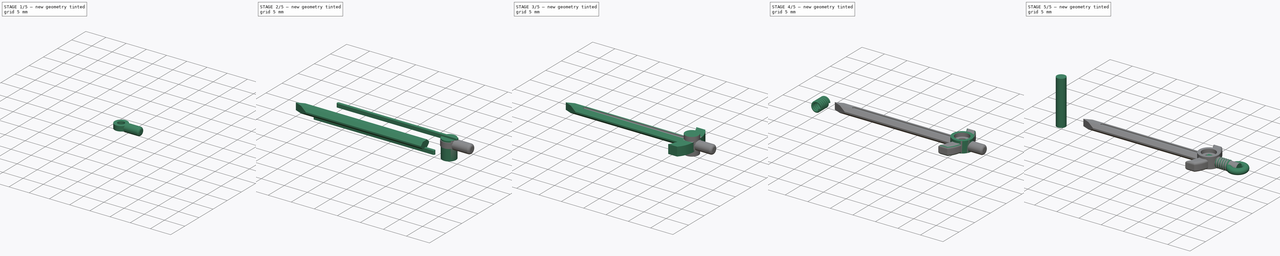
[diagram: build sequence overview — one tinted view per stage of 5, left to right]
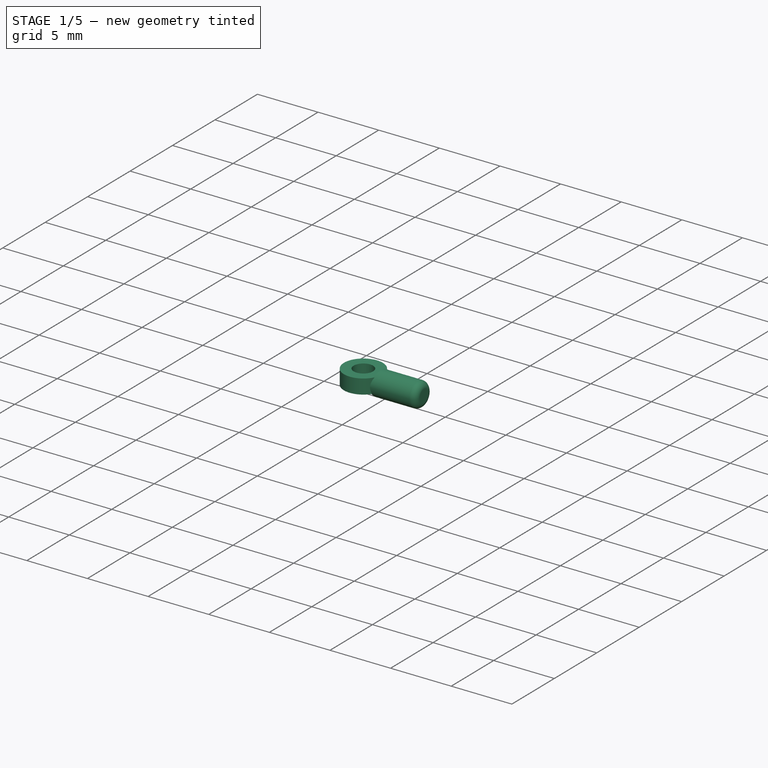
[diagram: stage 1 of 5 — iso view after this stage's code; geometry added in this stage tinted green]
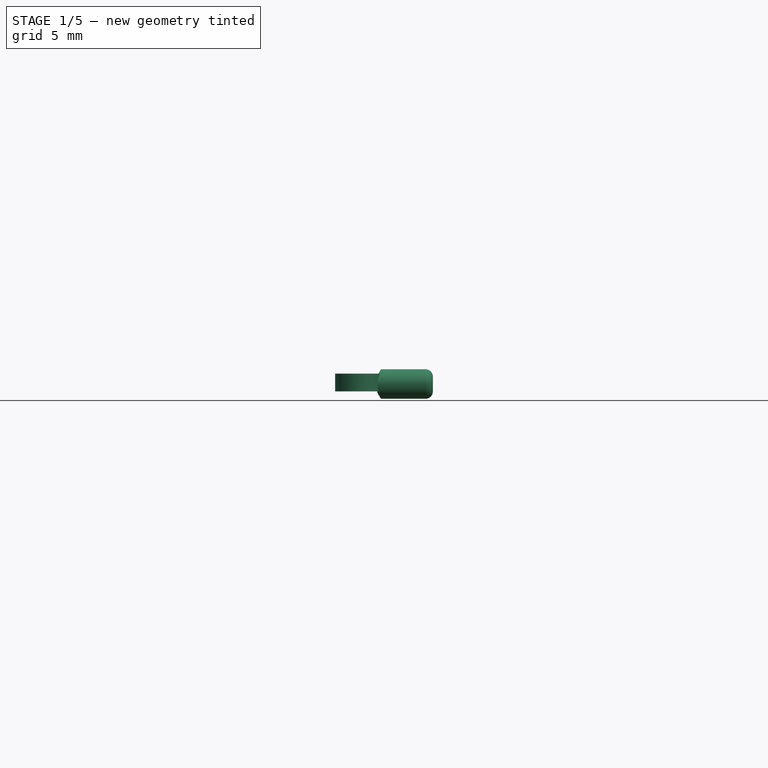
[diagram: stage 1 of 5 — front view after this stage's code; geometry added in this stage tinted green]
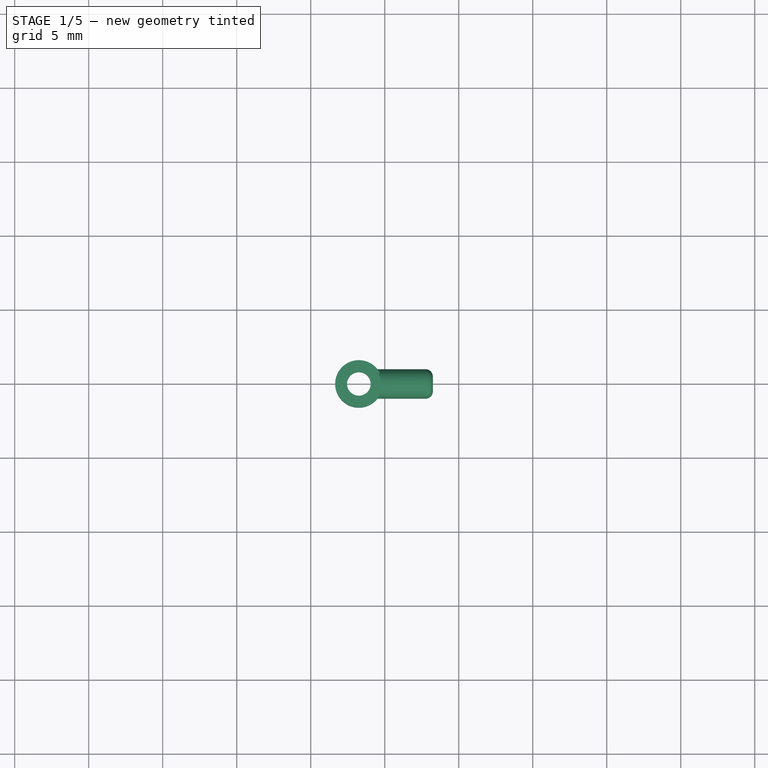
[diagram: stage 1 of 5 — top view after this stage's code; geometry added in this stage tinted green]
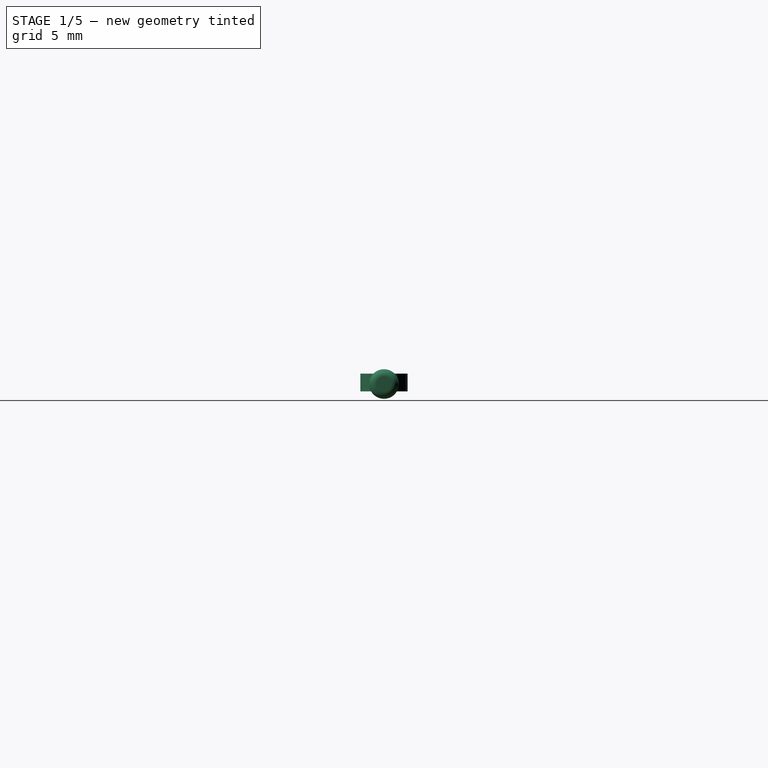
[diagram: stage 1 of 5 — right view after this stage's code; geometry added in this stage tinted green]
FCSTD DOCUMENT  (FreeCAD 0.19R)
Label: sword-of-sainktoedenrode
License: All rights reserved
LicenseURL: http://en.wikipedia.org/wiki/All_rights_reserved
objects: Sketcher::SketchObject×7, Part::Cylinder×6, Part::Cut×5, App::MeasureDistance×5, Part::Extrusion×4, Part::FeaturePython×4, Part::Fillet×3, Part::Feature×1, Part::Chamfer×1, Part::Torus×1, Part::Cone×1, Part::Part2DObjectPython×1, PartDesign::AdditiveHelix×1, PartDesign::Body×1, Part::Compound×1
note: 38 computed .brp shape members not serialized (recipe doc carries the construction recipe); baked Part::Feature solids carry a one-line shape summary decoded from their .brp

FEATURE [PartDesign::Body] Body
  Group = -> [Sketch003,AdditiveHelix]
  Origin = -> Origin
  Placement = pos=(39.3,0,2) rot=(0,0,1;1.5708rad)
  Tip = -> AdditiveHelix
FEATURE [Part::Cylinder] Cylinder002
  Angle = 360
  AttacherType = Attacher::AttachEngine3D
  Height = 4.5
  Placement = pos=(33.75,0,2) rot=(0.707107,0,0.707107;3.14159rad)
  Radius = 1
FEATURE [Part::Fillet] Fillet002
  Base = -> Cylinder002
  Edges = 1 edges r=0.5: [Edge1]
FEATURE [Part::Cylinder] Cylinder005
  Angle = 360
  AttacherType = Attacher::AttachEngine3D
  Height = 4
  Placement = pos=(33.25,0,-1) rot=(0,0,1;0rad)
  Radius = 1.5
FEATURE [Part::Cut] Cut004
  Base = -> Fillet002
  Tool = -> Cylinder005
FEATURE [Part::FeaturePython] Tube001  # WARN: FeaturePython — macro-defined, semantics opaque (R4)
  AttacherType = Attacher::AttachEngine3D
  Height = 1.2
  InnerRadius = 0.8
  OuterRadius = 1.6
  Placement = pos=(33.25,0,1.5) rot=(0,0,1;0rad)
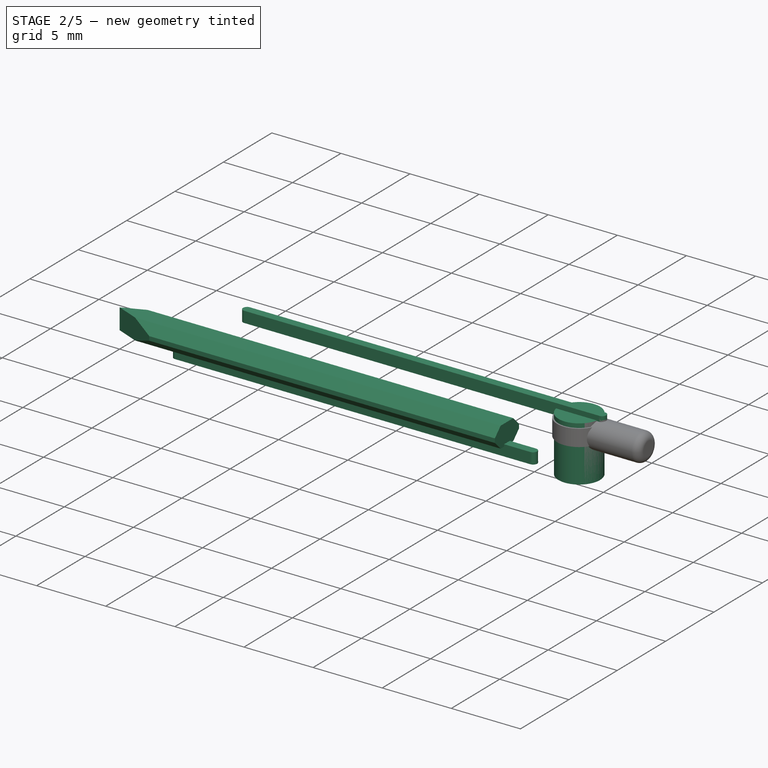
[diagram: stage 2 of 5 — iso view after this stage's code; geometry added in this stage tinted green]
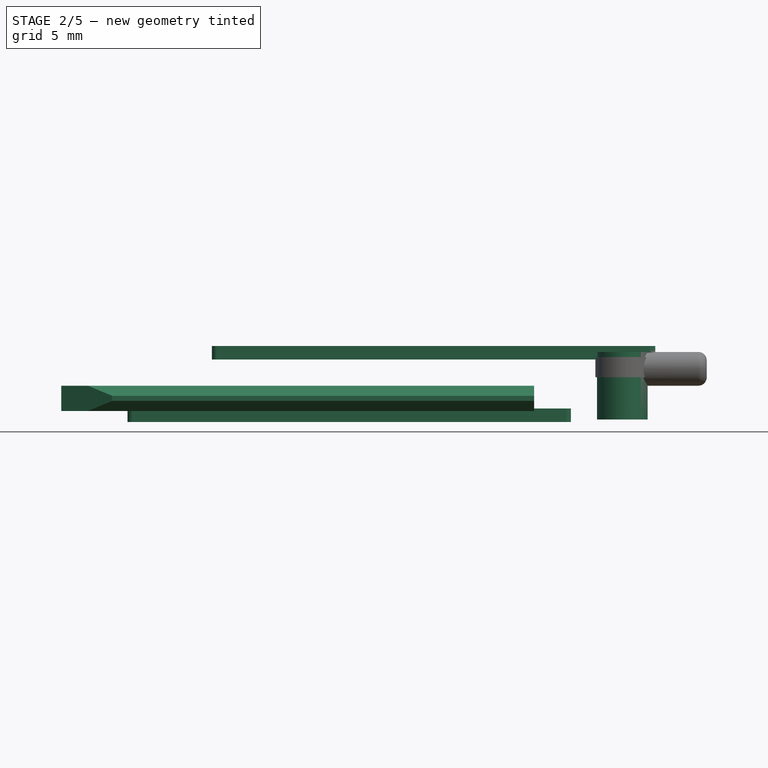
[diagram: stage 2 of 5 — front view after this stage's code; geometry added in this stage tinted green]
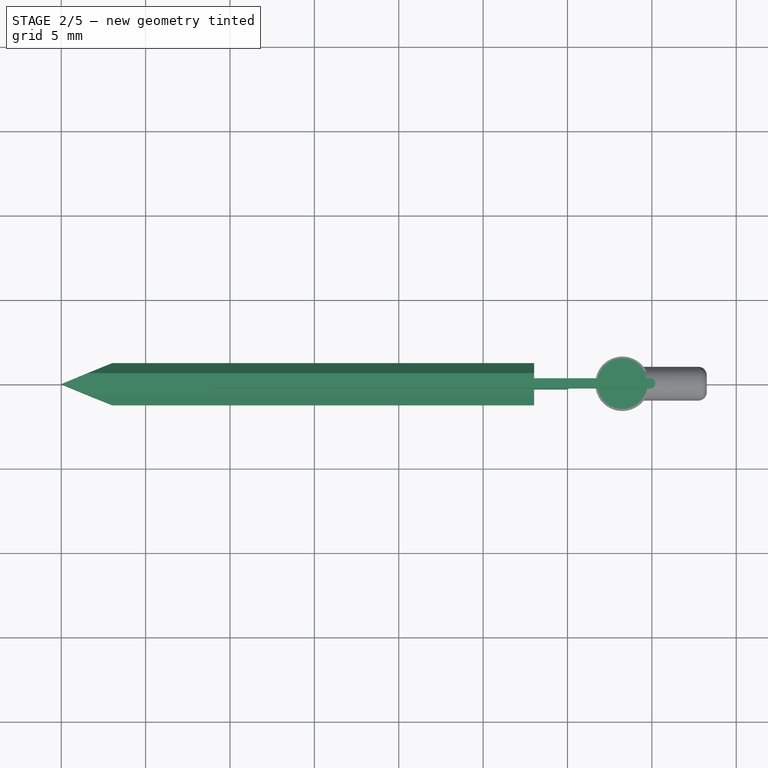
[diagram: stage 2 of 5 — top view after this stage's code; geometry added in this stage tinted green]
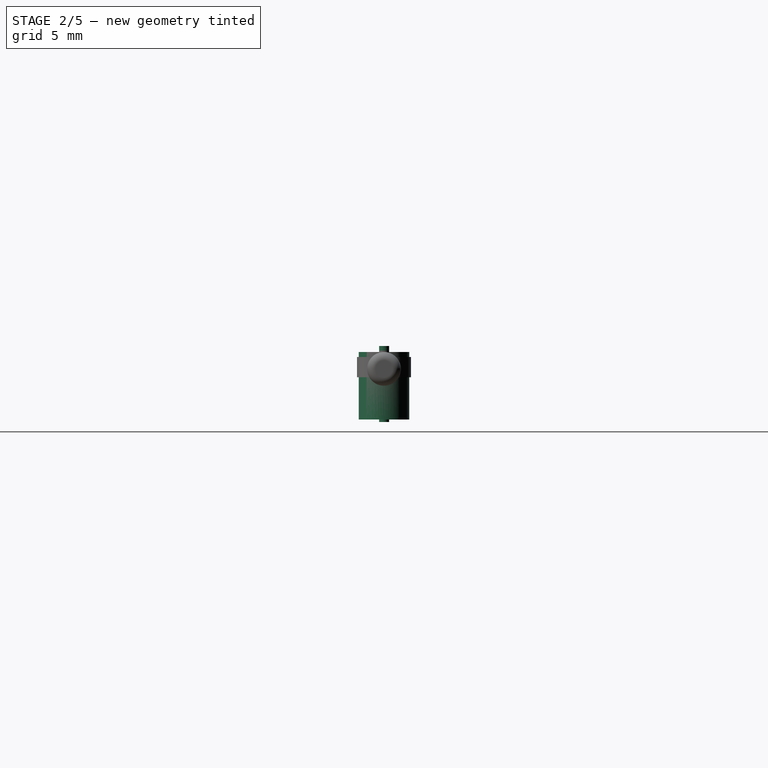
[diagram: stage 2 of 5 — right view after this stage's code; geometry added in this stage tinted green]
FEATURE [Sketcher::SketchObject] Sketch
  FullyConstrained = false
  Placement = pos=(0,0,1) rot=(0,0,1;0rad)
  sketch-geometry (11):
    g0: LineSegment StartX=0 StartY=0 StartZ=0 EndX=35 EndY=0 EndZ=0
    g1: LineSegment StartX=0 StartY=0 StartZ=0 EndX=3.01866 EndY=1.25 EndZ=0
    g2: LineSegment StartX=3.01866 StartY=1.25 StartZ=0 EndX=28.0187 EndY=1.25 EndZ=0
    g3: LineSegment StartX=28.0187 StartY=1.25 StartZ=0 EndX=28.0187 EndY=-1.25 EndZ=0
    g4: LineSegment StartX=28.0187 StartY=-1.25 StartZ=0 EndX=3.01866 EndY=-1.25 EndZ=0
    g5: LineSegment StartX=3.01866 StartY=-1.25 StartZ=0 EndX=0 EndY=0 EndZ=0
    g6: LineSegment StartX=3.01866 StartY=1.25 StartZ=0 EndX=3.01866 EndY=0 EndZ=0
    g7: LineSegment StartX=28.0187 StartY=5.25 StartZ=0 EndX=28.0187 EndY=1.25 EndZ=0
    g8: LineSegment StartX=28.0187 StartY=-1.25 StartZ=0 EndX=28.0187 EndY=-5.25 EndZ=0
    g9: LineSegment StartX=29.0587 StartY=3.25 StartZ=0 EndX=29.0587 EndY=-3.25 EndZ=0
    g10: LineSegment StartX=3.01866 StartY=0 StartZ=0 EndX=3.01866 EndY=-1.25 EndZ=0
  constraints (27):
    c: Coincident(g0,g-1)
    c: PointOnObject(g0,g-1)
    c: Distance(g0) = 35
    c: Coincident(g-1,g1)
    c: Coincident(g1,g2)
    c: Horizontal(g2)
    c: Coincident(g2,g3)
    c: Vertical(g3)
    c: Coincident(g3,g4)
    c: Horizontal(g4)
    c: Coincident(g4,g5)
    c: Coincident(g5,g1)
    c: Distance(g4) = 25
    c: Coincident(g6,g1)
    c: PointOnObject(g6,g0)
    c: Vertical(g6)
    c: Distance(g6) = 1.25
    c: Coincident(g7,g2)
    c: Vertical(g7)
    c: Coincident(g8,g3)
    c: Vertical(g8)
    c: Distance(g8) = 4
    c: Vertical(g9)
    c: Coincident(g10,g6)
    c: Coincident(g10,g4)
    c: Distance(g10) = 1.25
    c: Vertical(g10)
FEATURE [Sketcher::SketchObject] Sketch001
  FullyConstrained = false
  MapMode = 2
  Placement = pos=(0,0,1) rot=(0,0,1;0rad)
  Support = -> [Sketch]
  sketch-geometry (10):
    g0: LineSegment StartX=0 StartY=0 StartZ=0 EndX=31.0965 EndY=0 EndZ=0
    g1: LineSegment StartX=31.0965 StartY=0 StartZ=0 EndX=31.0965 EndY=4.5 EndZ=0
    g2: LineSegment StartX=31.0965 StartY=0 StartZ=0 EndX=31.0965 EndY=-4.5 EndZ=0
    g3: ArcOfCircle CenterX=23.8854 CenterY=0 CenterZ=0 NormalX=0 NormalY=0 NormalZ=1 AngleXU=0 Radius=8.5 StartAngle=5.72528 EndAngle=6.84109
    g4: LineSegment StartX=31.0965 StartY=4.5 StartZ=0 EndX=33.0965 EndY=4.5 EndZ=0
    g5: LineSegment StartX=31.0965 StartY=-4.5 StartZ=0 EndX=33.0965 EndY=-4.5 EndZ=0
    g6: LineSegment StartX=34.4324 StartY=0 StartZ=0 EndX=34.4324 EndY=1.12602 EndZ=0
    g7: LineSegment StartX=34.4324 StartY=0 StartZ=0 EndX=34.4324 EndY=-1.19855 EndZ=0
    g8: ArcOfCircle CenterX=28.9369 CenterY=0.901672 CenterZ=0 NormalX=0 NormalY=0 NormalZ=1 AngleXU=0 Radius=5.5 StartAngle=0.0408016 EndAngle=0.713179
    g9: ArcOfCircle CenterX=29.1433 CenterY=-0.979445 CenterZ=0 NormalX=0 NormalY=0 NormalZ=1 AngleXU=0 Radius=5.2936 StartAngle=5.55561 EndAngle=6.24178
  constraints (26):
    c: Coincident(g0,g-1)
    c: PointOnObject(g0,g-1)
    c: Coincident(g1,g0)
    c: Vertical(g1)
    c: Coincident(g2,g0)
    c: Vertical(g2)
    c: PointOnObject(g3,g0)
    c: Coincident(g3,g1)
    c: Coincident(g3,g2)
    c: Coincident(g4,g3)
    c: Horizontal(g4)
    c: Coincident(g5,g3)
    c: Horizontal(g5)
    c: Distance(g4) = 2
    c: PointOnObject(g6,g-1)
    c: Vertical(g6)
    c: Coincident(g7,g6)
    c: Vertical(g7)
    c: Coincident(g8,g4)
    c: Coincident(g8,g6)
    c: Radius(g8) = 5.5
    c: Distance(g5) = 2
    c: Coincident(g9,g7)
    c: Coincident(g9,g5)
    c: Distance(g1) = 4.5
    c: Radius(g3) = 8.5
FEATURE [Sketcher::SketchObject] Sketch002
  FullyConstrained = false
  MapMode = 2
  Placement = pos=(0,0,1) rot=(0,0,1;0rad)
  Support = -> [Sketch]
  sketch-geometry (2):
    g0: LineSegment StartX=2.84783 StartY=1.25781 StartZ=0 EndX=2.84783 EndY=-1.275 EndZ=0
    g1: LineSegment StartX=2.84783 StartY=0 StartZ=0 EndX=32.7637 EndY=0 EndZ=0
  constraints (4):
    c: Vertical(g0)
    c: PointOnObject(g1,g0)
    c: PointOnObject(g1,g-1)
    c: Horizontal(g1)
FEATURE [Part::Extrusion] Extrude001
  Base = -> Sketch
  Dir = (0,0,-1)
  DirMode = 0
  FaceMakerClass = Part::FaceMakerBullseye
  LengthFwd = 1.5
  LengthRev = 0
  Solid = true
  Symmetric = false
FEATURE [Part::Feature] Part__Feature  label="ROUND_BRILLIANT_3D0"
  Placement = pos=(33.25,0,3) rot=(1,0,0;1.5708rad)
  shape: bbox 3 x 3 x 1.77 mm, 74 faces (baked)
FEATURE [Sketcher::SketchObject] Mapped_Sketch
  FullyConstrained = false
  sketch-geometry (8):
    g0: LineSegment StartX=-15.1669 StartY=-0.75 StartZ=0 EndX=15.9677 EndY=-0.75 EndZ=0
    g1: LineSegment StartX=15.9677 StartY=-0.75 StartZ=0 EndX=15.9677 EndY=0.75 EndZ=0
    g2: LineSegment StartX=15.9677 StartY=0.75 StartZ=0 EndX=-15.1669 EndY=0.75 EndZ=0
    g3: LineSegment StartX=-15.1669 StartY=0.75 StartZ=0 EndX=-15.1669 EndY=-0.75 EndZ=0
    g4: ArcOfCircle CenterX=14.4743 CenterY=0 CenterZ=0 NormalX=0 NormalY=0 NormalZ=1 AngleXU=0 Radius=0.237233 StartAngle=4.71239 EndAngle=7.85398
    g5: ArcOfCircle CenterX=-14.3973 CenterY=1e-16 CenterZ=0 NormalX=0 NormalY=0 NormalZ=1 AngleXU=0 Radius=0.237233 StartAngle=1.5708 EndAngle=4.71239
    g6: LineSegment StartX=14.4743 StartY=0.237233 StartZ=0 EndX=-14.3973 EndY=0.237233 EndZ=0
    g7: LineSegment StartX=14.4743 StartY=-0.237233 StartZ=0 EndX=-14.3973 EndY=-0.237233 EndZ=0
  constraints (19):
    c: Coincident(g0,g1)
    c: Coincident(g1,g2)
    c: Coincident(g2,g3)
    c: Coincident(g3,g0)
    c: Horizontal(g0)
    c: Horizontal(g2)
    c: Vertical(g1)
    c: Vertical(g3)
    c: DistanceX(g2,g2) = 31.1346
    c: DistanceY(g1,g1) = 1.5
    c: DistanceX(g0,g-1) = 15.1669
    c: DistanceY(g0,g-1) = 0.75
    c: Tangent(g4,g7) = 1.5708
    c: Tangent(g4,g6) = -1.5708
    c: Tangent(g6,g5) = -1.5708
    c: Tangent(g7,g5) = 1.5708
    c: Horizontal(g6)
    c: Equal(g4,g5)
    c: PointOnObject(g4,g-1)
FEATURE [Part::FeaturePython] Sketch_On_Surface  # WARN: FeaturePython — macro-defined, semantics opaque (R4)
  ConstructionBounds = true
  FillExtrusion = true
  FillFaces = false
  ReverseU = false
  ReverseV = false
  Sketch = -> Mapped_Sketch
  SwapUV = false
  Thickness = 0
FEATURE [Part::Extrusion] Extrude002
  Base = -> Sketch_On_Surface
  Dir = (0,0,-1)
  DirMode = 0
  FaceMakerClass = Part::FaceMakerBullseye
  LengthFwd = 0.8
  LengthRev = 0
  Placement = pos=(0,0,0.65) rot=(0,0,1;0rad)
  Solid = true
  Symmetric = false
FEATURE [Part::Chamfer] Chamfer
  Base = -> Extrude001
  Edges = 4 edges r=0.6: [Edge6,Edge7,Edge12,Edge13]
FEATURE [Sketcher::SketchObject] Mapped_Sketch001
  FullyConstrained = false
  sketch-geometry (8):
    g0: LineSegment StartX=-15.1669 StartY=-0.75 StartZ=0 EndX=15.9677 EndY=-0.75 EndZ=0
    g1: LineSegment StartX=15.9677 StartY=-0.75 StartZ=0 EndX=15.9677 EndY=0.75 EndZ=0
    g2: LineSegment StartX=15.9677 StartY=0.75 StartZ=0 EndX=-15.1669 EndY=0.75 EndZ=0
    g3: LineSegment StartX=-15.1669 StartY=0.75 StartZ=0 EndX=-15.1669 EndY=-0.75 EndZ=0
    g4: ArcOfCircle CenterX=14.4743 CenterY=0 CenterZ=0 NormalX=0 NormalY=0 NormalZ=1 AngleXU=0 Radius=0.237233 StartAngle=4.71239 EndAngle=7.85398
    g5: ArcOfCircle CenterX=-14.3973 CenterY=1e-16 CenterZ=0 NormalX=0 NormalY=0 NormalZ=1 AngleXU=0 Radius=0.237233 StartAngle=1.5708 EndAngle=4.71239
    g6: LineSegment StartX=14.4743 StartY=0.237233 StartZ=0 EndX=-14.3973 EndY=0.237233 EndZ=0
    g7: LineSegment StartX=14.4743 StartY=-0.237233 StartZ=0 EndX=-14.3973 EndY=-0.237233 EndZ=0
  constraints (19):
    c: Coincident(g0,g1)
    c: Coincident(g1,g2)
    c: Coincident(g2,g3)
    c: Coincident(g3,g0)
    c: Horizontal(g0)
    c: Horizontal(g2)
    c: Vertical(g1)
    c: Vertical(g3)
    c: DistanceX(g2,g2) = 31.1346
    c: DistanceY(g1,g1) = 1.5
    c: DistanceX(g0,g-1) = 15.1669
    c: DistanceY(g0,g-1) = 0.75
    c: Tangent(g4,g7) = 1.5708
    c: Tangent(g4,g6) = -1.5708
    c: Tangent(g6,g5) = -1.5708
    c: Tangent(g7,g5) = 1.5708
    c: Horizontal(g6)
    c: Equal(g4,g5)
    c: PointOnObject(g4,g-1)
FEATURE [Part::FeaturePython] Sketch_On_Surface001  # WARN: FeaturePython — macro-defined, semantics opaque (R4)
  ConstructionBounds = true
  FillExtrusion = true
  FillFaces = false
  ReverseU = false
  ReverseV = false
  Sketch = -> Mapped_Sketch001
  SwapUV = false
  Thickness = 0
FEATURE [Part::Extrusion] Extrude003
  Base = -> Sketch_On_Surface001
  Dir = (0,0,-1)
  DirMode = 0
  FaceMakerClass = Part::FaceMakerBullseye
  LengthFwd = 0.8
  LengthRev = 0
  Placement = pos=(5,0,4.35) rot=(0,0,1;0rad)
  Solid = true
  Symmetric = false
FEATURE [App::MeasureDistance] Distance003  label="Distance: 1.50 mm"
  Distance = 1.50274
  P1 = (6.01574,-0.420609,1.25)
  P2 = (5.93189,-0.385887,2.75)
FEATURE [Part::Cylinder] Cylinder004
  Angle = 360
  AttacherType = Attacher::AttachEngine3D
  Height = 4
  Placement = pos=(33.25,0,-1) rot=(0,0,1;0rad)
  Radius = 1.5
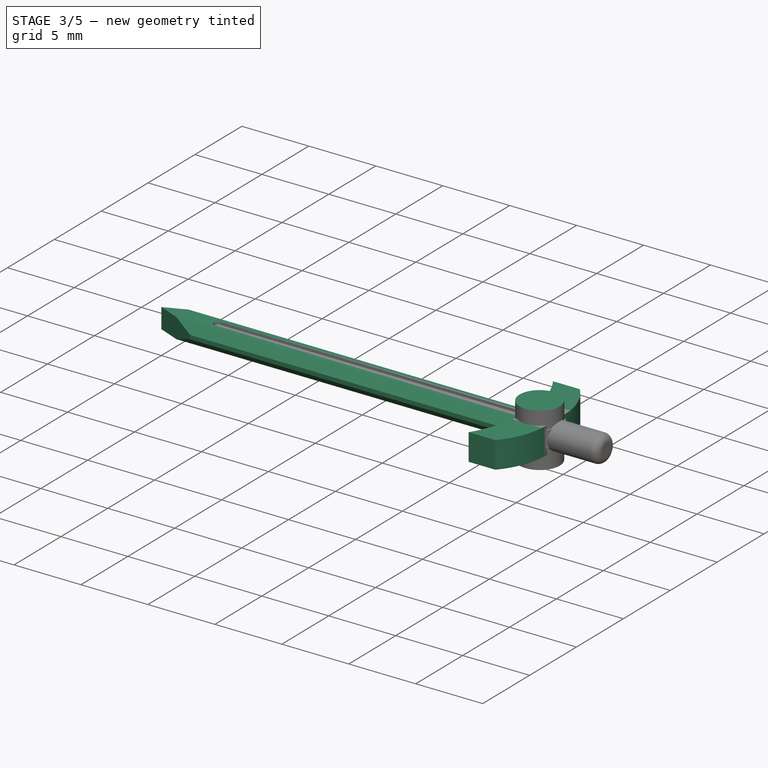
[diagram: stage 3 of 5 — iso view after this stage's code; geometry added in this stage tinted green]
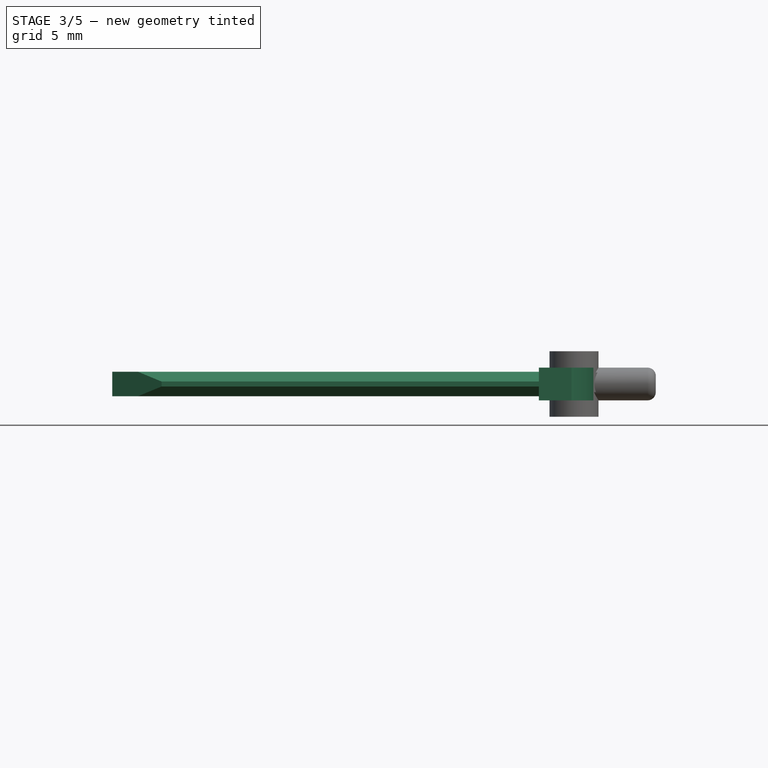
[diagram: stage 3 of 5 — front view after this stage's code; geometry added in this stage tinted green]
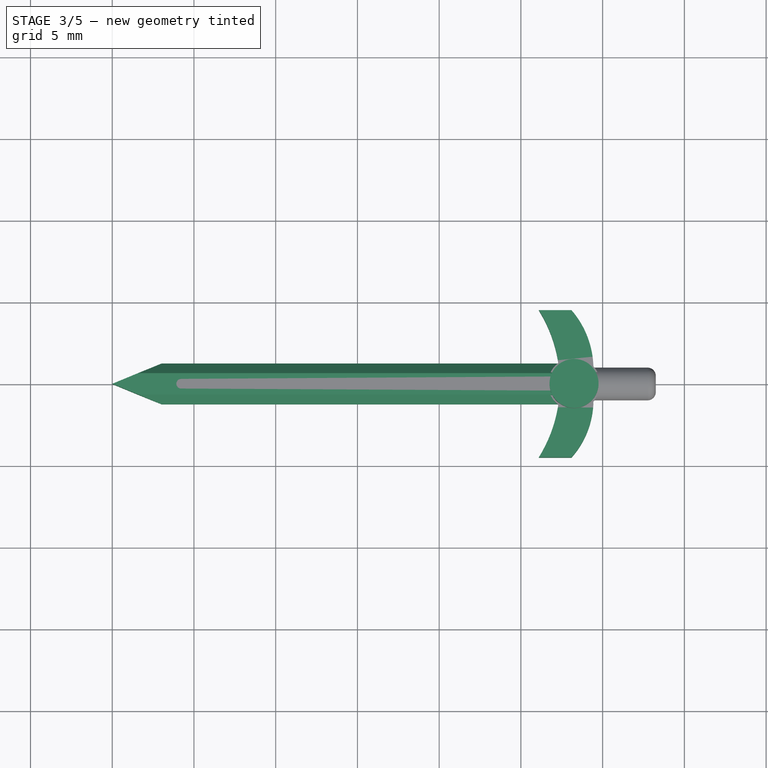
[diagram: stage 3 of 5 — top view after this stage's code; geometry added in this stage tinted green]
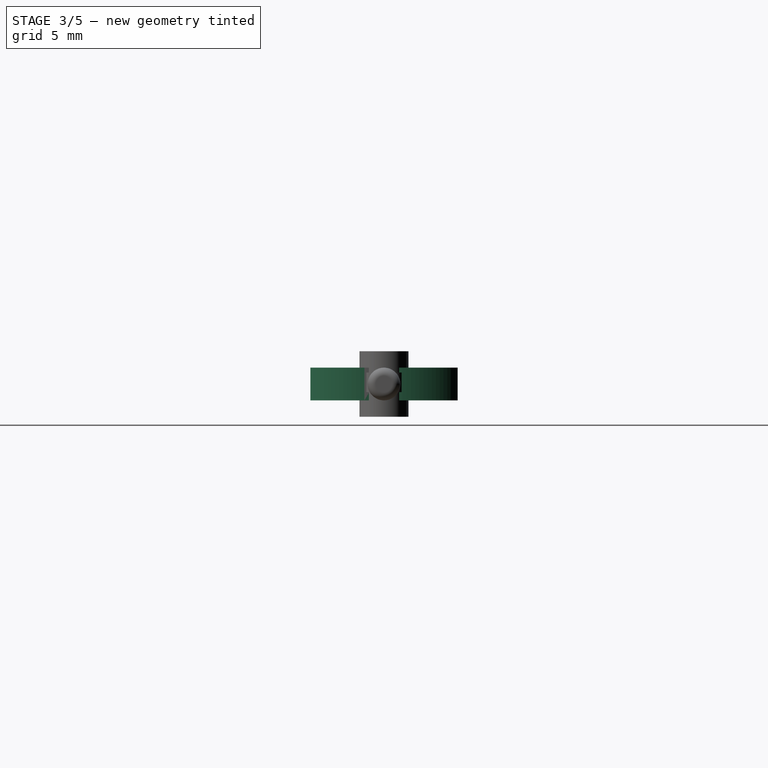
[diagram: stage 3 of 5 — right view after this stage's code; geometry added in this stage tinted green]
FEATURE [Part::Extrusion] Extrude
  Base = -> Sketch001
  Dir = (0,0,1)
  DirMode = 2
  FaceMakerClass = Part::FaceMakerBullseye
  LengthFwd = 2
  LengthRev = 0
  Solid = true
  Symmetric = false
FEATURE [Part::Part2DObjectPython] BSpline  label="Cone_BSpline"  # Draft 2D object (typed FeaturePython)
  Area = 0
  Closed = false
  MakeFace = true
  Parameterization = 1
  Points = (9) [(37.3496,0.201863,1.25),(37.4579,0.384243,1.33333),(37.424,0.50527,1.41667),(37.3435,0.594886,1.5),(37.2417,0.663981,1.58333),+4 more]
FEATURE [Part::Cut] Cut
  Base = -> Chamfer
  Placement = pos=(5,0,1.75) rot=(0,0,1;0rad)
  Tool = -> Extrude002
FEATURE [Part::Cut] Cut001
  Base = -> Cut
  Tool = -> Extrude003
FEATURE [App::MeasureDistance] Distance  label="Distance: 2.00 mm"
  Distance = 2
  P1 = (39.8705,0.992709,2)
  P2 = (39.6295,-0.992709,2)
FEATURE [Sketcher::SketchObject] Mapped_Sketch003
  FullyConstrained = false
  Support = -> [Fillet001]
  sketch-geometry (7):
    g0: LineSegment StartX=-0.86932 StartY=-3.99866 StartZ=0 EndX=1.1158 EndY=-3.99866 EndZ=0
    g1: LineSegment StartX=1.1158 StartY=-3.99866 StartZ=0 EndX=1.1158 EndY=4.00134 EndZ=0
    g2: LineSegment StartX=1.1158 StartY=4.00134 StartZ=0 EndX=-0.86932 EndY=4.00134 EndZ=0
    g3: LineSegment StartX=-0.86932 StartY=4.00134 StartZ=0 EndX=-0.86932 EndY=-3.99866 EndZ=0
    g4: Circle CenterX=0.530266 CenterY=0 CenterZ=0 NormalX=0 NormalY=0 NormalZ=1 AngleXU=0 Radius=0.530266
    g5: Circle CenterX=0.492993 CenterY=-3.01696 CenterZ=0 NormalX=0 NormalY=0 NormalZ=1 AngleXU=0 Radius=0.492993
    g6: Circle CenterX=0.465108 CenterY=2.91434 CenterZ=0 NormalX=0 NormalY=0 NormalZ=1 AngleXU=0 Radius=0.451984
  constraints (15):
    c: Coincident(g0,g1)
    c: Coincident(g1,g2)
    c: Coincident(g2,g3)
    c: Coincident(g3,g0)
    c: Horizontal(g0)
    c: Horizontal(g2)
    c: Vertical(g1)
    c: Vertical(g3)
    c: DistanceX(g2,g2) = 1.98512
    c: DistanceY(g1,g1) = 8
    c: DistanceX(g0,g-1) = 0.86932
    c: DistanceY(g0,g-1) = 3.99866
    c: PointOnObject(g4,g-1)
    c: PointOnObject(g-1,g4)
    c: Tangent(g5,g-2)
FEATURE [App::MeasureDistance] Distance001  label="Distance: 0.67 mm"
  Distance = 0.667033
  P1 = (1.46239,-0.333781,3)
  P2 = (2.08182,-0.0863193,3)
FEATURE [App::MeasureDistance] Distance002  label="Distance: 35.77 mm"
  Distance = 35.7651
  P1 = (40.7291,-0.0625471,4.35257)
  P2 = (5,0,2.75)
FEATURE [Part::Cylinder] Cylinder003
  Angle = 360
  AttacherType = Attacher::AttachEngine3D
  Height = 4
  Placement = pos=(33.25,0,0) rot=(0,0,1;0rad)
  Radius = 1.5
FEATURE [Part::Cut] Cut003
  Base = -> Cut001
  Tool = -> Cylinder004
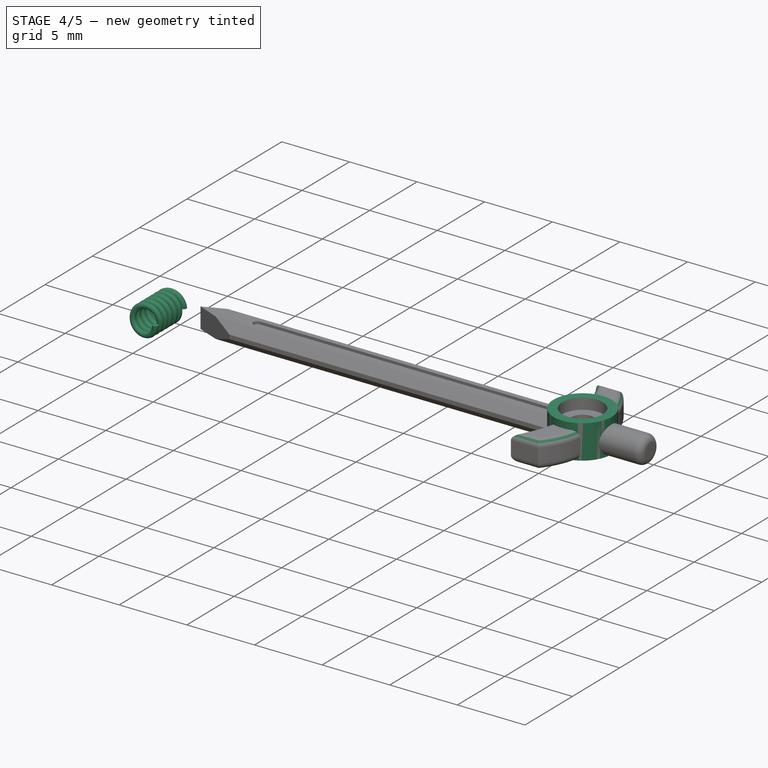
[diagram: stage 4 of 5 — iso view after this stage's code; geometry added in this stage tinted green]
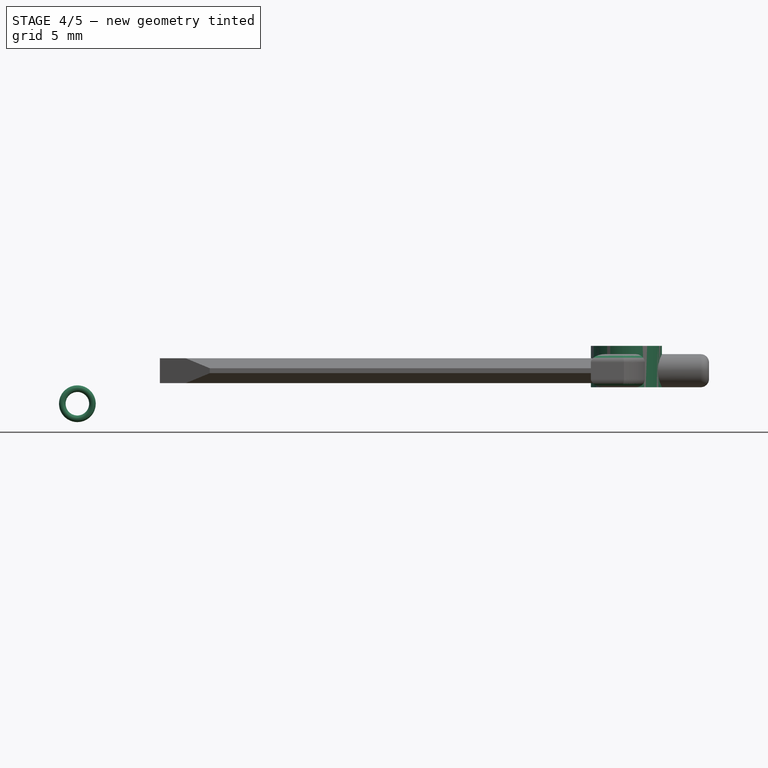
[diagram: stage 4 of 5 — front view after this stage's code; geometry added in this stage tinted green]
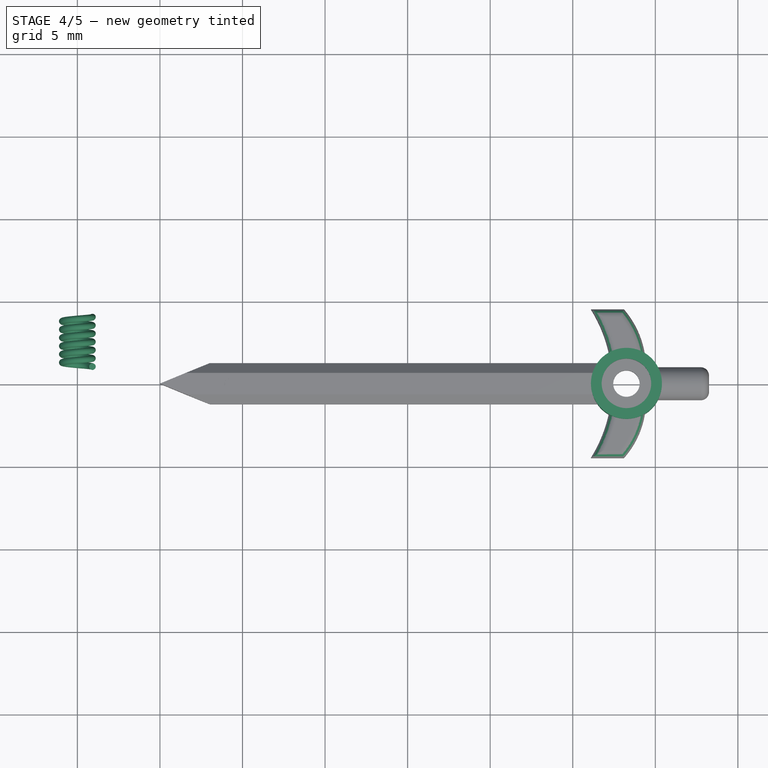
[diagram: stage 4 of 5 — top view after this stage's code; geometry added in this stage tinted green]
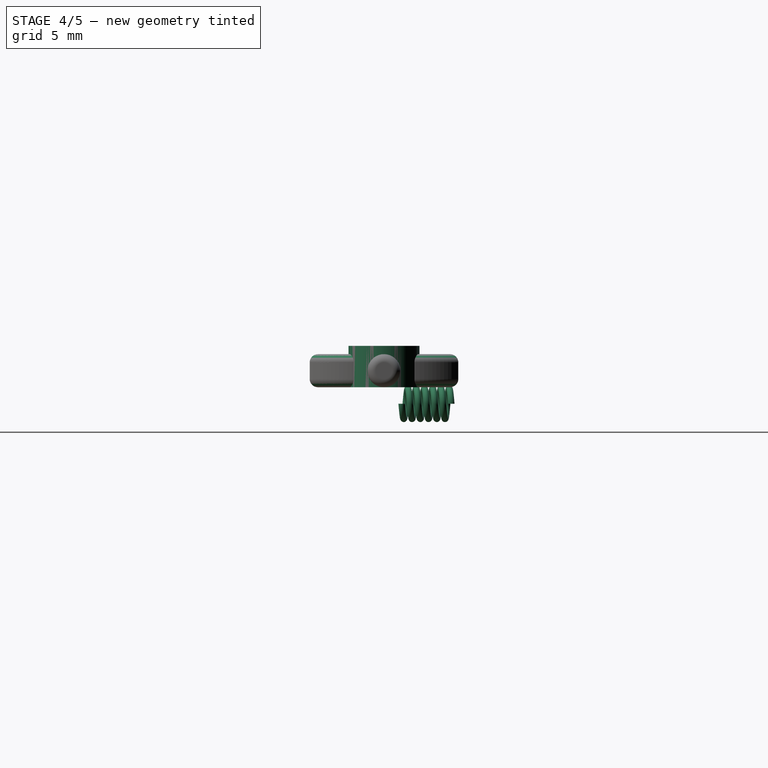
[diagram: stage 4 of 5 — right view after this stage's code; geometry added in this stage tinted green]
FEATURE [Part::Fillet] Fillet
  Base = -> Extrude
  Edges = 7 edges r=0.5: [Edge3,Edge6,Edge9,Edge12,Edge15,Edge18,Edge20]
FEATURE [Part::Fillet] Fillet001
  Base = -> Fillet
  Edges = 7 edges r=0.5: [Edge2,Edge5,Edge11,Edge12,Edge13,Edge14,Edge15]
FEATURE [PartDesign::AdditiveHelix] AdditiveHelix
  Angle = 0
  Axis = (0,1,0)
  Base = (0,0,0)
  HasBeenEdited = true
  Height = 3
  LeftHanded = false
  Mode = 0
  Outside = false
  Pitch = 0.5
  Profile = -> Sketch003
  ReferenceAxis = -> Sketch003 [V_Axis]
  Turns = 4
FEATURE [Part::FeaturePython] Tube  # WARN: FeaturePython — macro-defined, semantics opaque (R4)
  AttacherType = Attacher::AttachEngine3D
  Height = 2.5
  InnerRadius = 1.5
  OuterRadius = 2.15
  Placement = pos=(33.25,0,1) rot=(0,0,1;0rad)
FEATURE [Part::Cut] Cut002
  Base = -> Fillet001
  Tool = -> Cylinder003
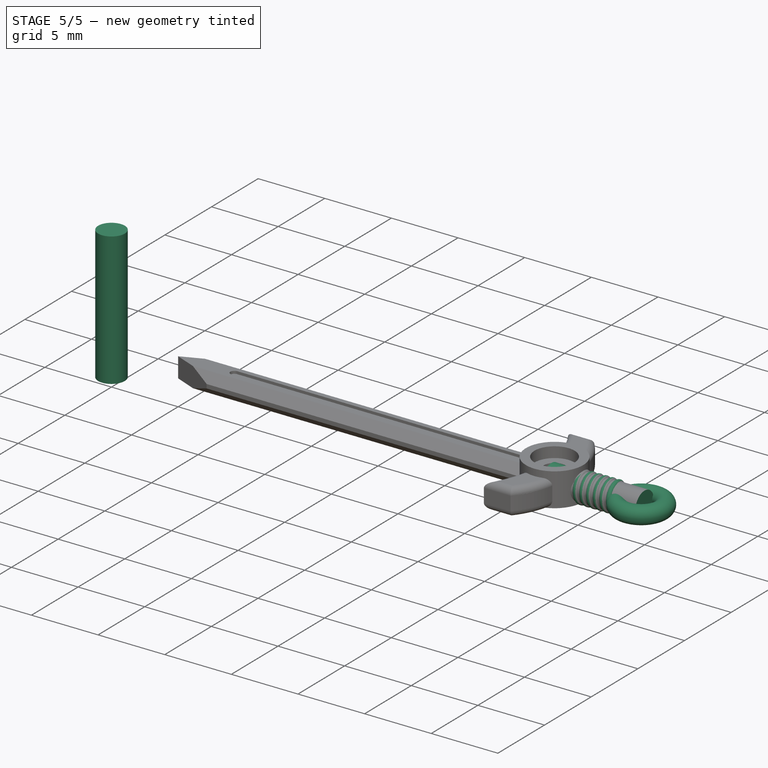
[diagram: stage 5 of 5 — iso view after this stage's code; geometry added in this stage tinted green]
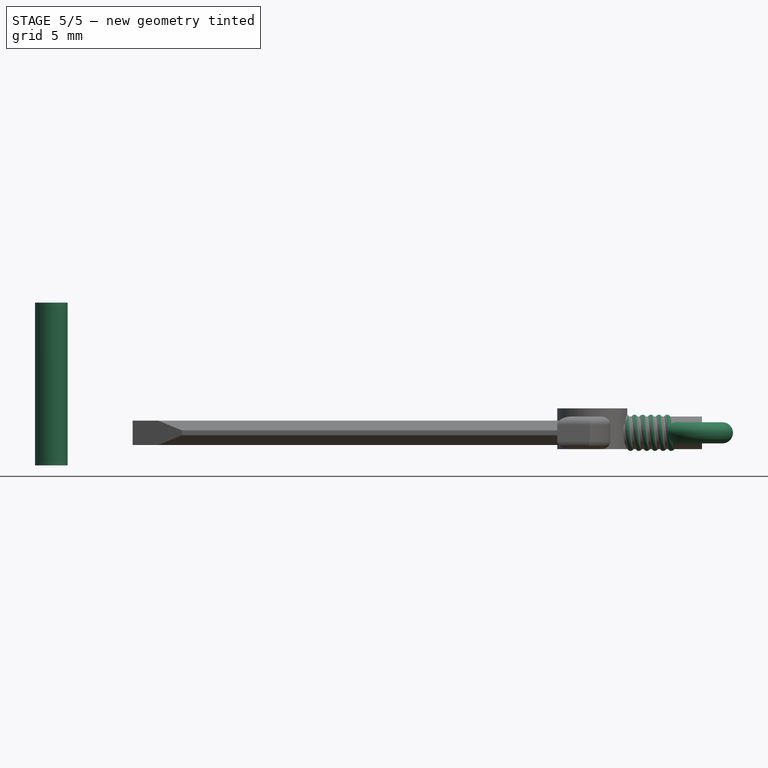
[diagram: stage 5 of 5 — front view after this stage's code; geometry added in this stage tinted green]
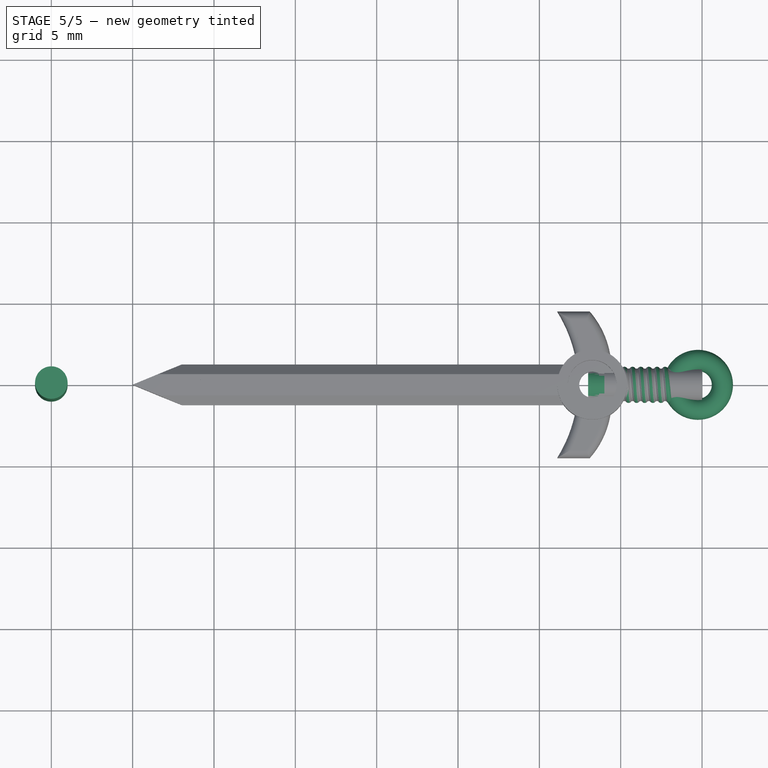
[diagram: stage 5 of 5 — top view after this stage's code; geometry added in this stage tinted green]
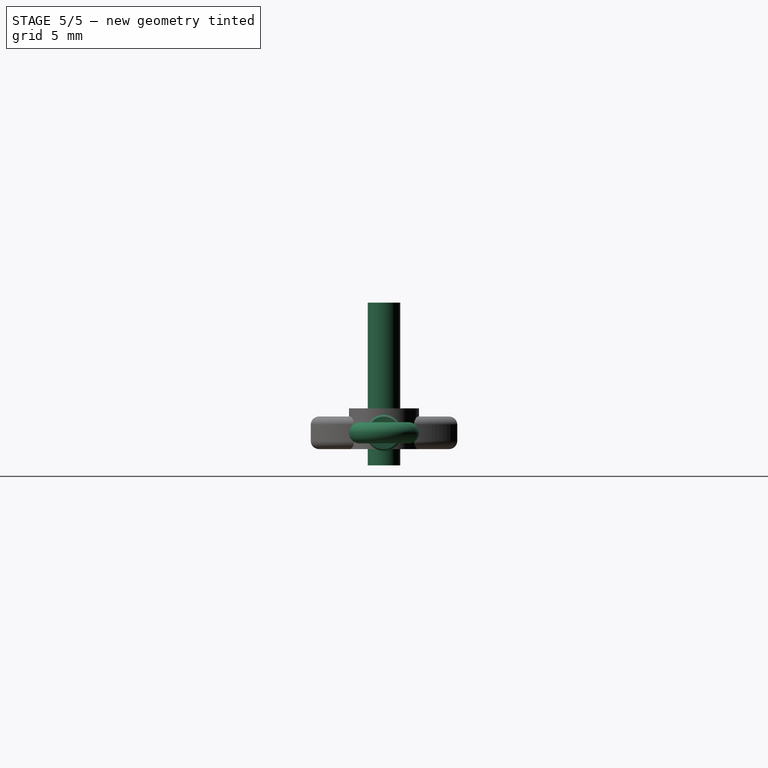
[diagram: stage 5 of 5 — right view after this stage's code; geometry added in this stage tinted green]
FEATURE [Part::Cylinder] Cylinder
  Angle = 360
  AttacherType = Attacher::AttachEngine3D
  Height = 6
  Placement = pos=(34,0,2) rot=(0,1,0;1.5708rad)
  Radius = 1
FEATURE [Part::Torus] Torus
  Angle1 = -180
  Angle2 = 180
  Angle3 = 360
  AttacherType = Attacher::AttachEngine3D
  Placement = pos=(39.75,0,2) rot=(0,0,1;0rad)
  Radius1 = 1.5
  Radius2 = 0.65
FEATURE [Part::Cone] Cone
  Angle = 360
  AttacherType = Attacher::AttachEngine3D
  Height = 6
  Placement = pos=(39,0,2) rot=(0,-1,0;1.5708rad)
  Radius1 = 0.8
  Radius2 = 1
FEATURE [Sketcher::SketchObject] Sketch003
  FullyConstrained = false
  MapMode = 5
  Support = -> [XY_Plane]
  sketch-geometry (1):
    g0: Circle CenterX=0.911652 CenterY=1.07161 CenterZ=0 NormalX=0 NormalY=0 NormalZ=1 AngleXU=0 Radius=0.2
  constraints (1):
    c: Radius(g0) = 0.2
FEATURE [Part::Cylinder] Cylinder001
  Angle = 360
  AttacherType = Attacher::AttachEngine3D
  Height = 10
  Radius = 1
FEATURE [Part::Compound] Compound
  Links = -> [Tube001,Cut004,Cut003,Cut002,Tube,Body,Torus]
FEATURE [App::MeasureDistance] Distance004  label="Distance: 26.07 mm"
  Distance = 26.0652
  P1 = (31.1,2.2e-15,3.5)
  P2 = (5.03643,0.240076,3.66703)
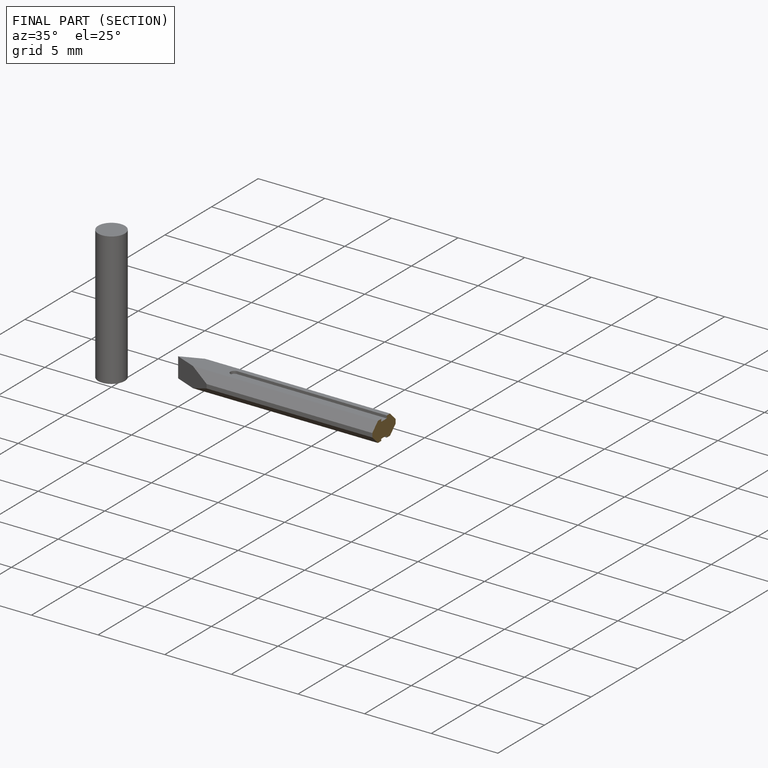
[diagram: finished part — half-section view (interior)]
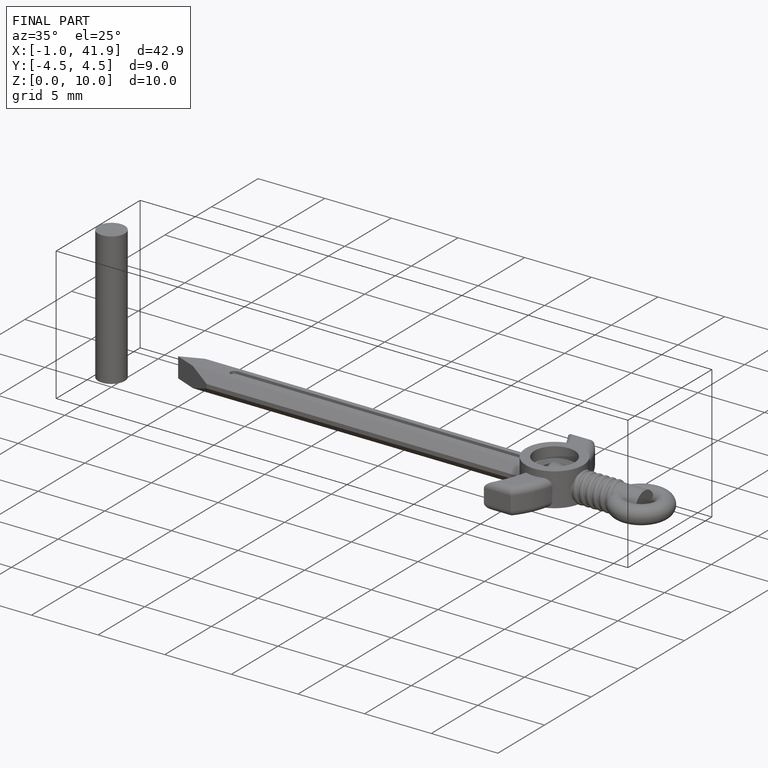
[diagram: finished part — iso view with bounding-box wireframe]
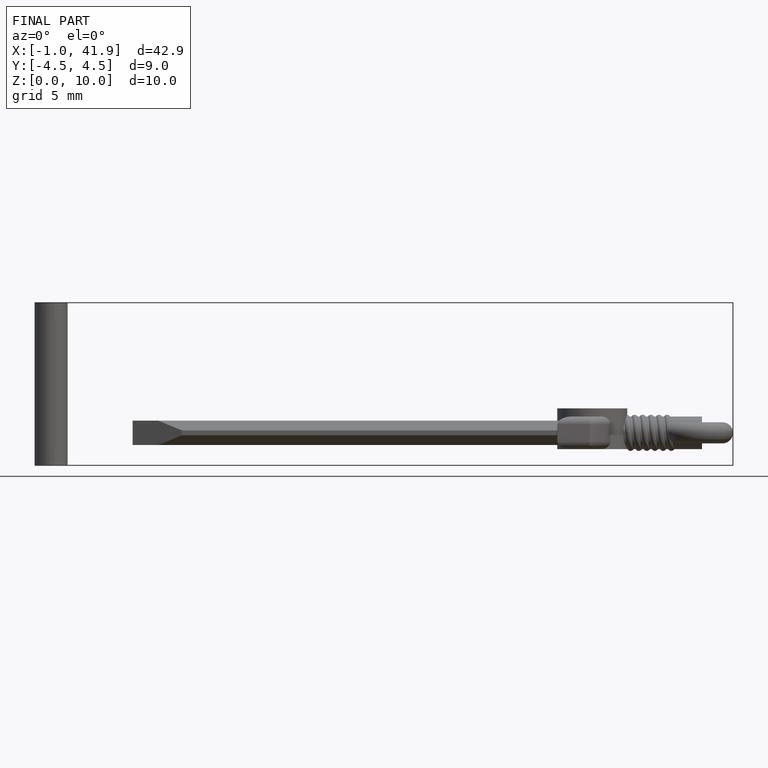
[diagram: finished part — front view with bounding-box wireframe]
